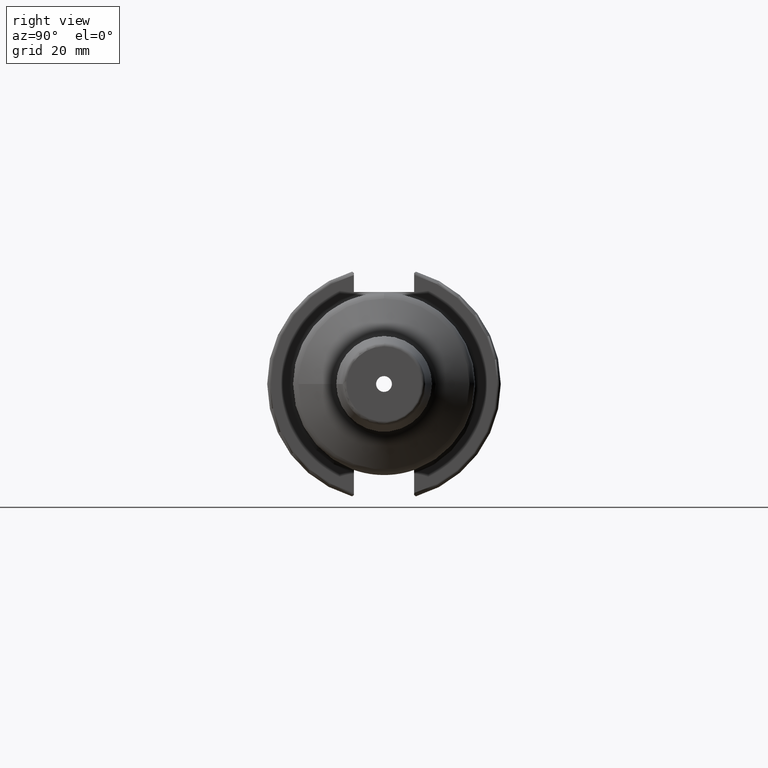
[diagram: clean part render]
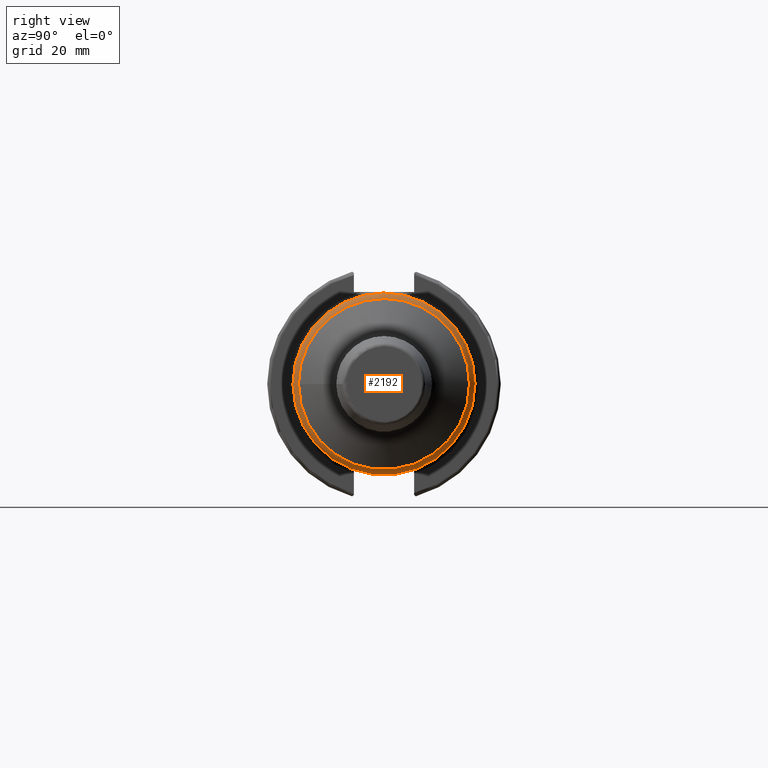
[diagram: same view with one face highlighted and labeled with its STEP entity id]
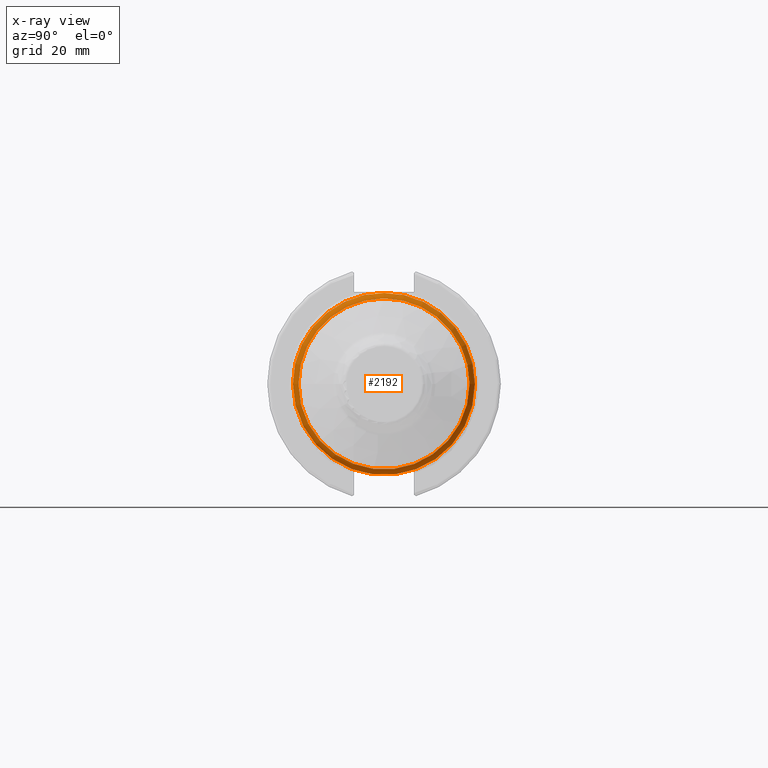
[diagram: x-ray of the same camera — body ghosted, the highlighted face saturated]
A machine part, right view. The second image highlights one B-rep face of the part: STEP entity #2192.
The next image is the same camera in x-ray: the body ghosted, the highlighted face saturated — about 0% of this face is hidden behind the body in this view.
In plain terms, the highlighted toroidal blend (fillet) surface has major radius 21.75 mm and minor (blend) radius 3 mm.
Its self-contained STEP definition (entity closure, byte-faithful):
#77=TOROIDAL_SURFACE('',#2437,21.75,3.);
#215=FACE_OUTER_BOUND('',#330,.T.);
#330=EDGE_LOOP('',(#1671,#1672,#1673,#1674,#1675,#1676,#1677,#1678));
#704=CIRCLE('',#2425,24.75);
#705=CIRCLE('',#2426,24.75);
#706=CIRCLE('',#2427,24.75);
#711=CIRCLE('',#2434,23.25);
#712=CIRCLE('',#2435,23.25);
#713=CIRCLE('',#2436,23.25);
#714=CIRCLE('',#2438,3.);
#902=VERTEX_POINT('',#3731);
#903=VERTEX_POINT('',#3732);
#904=VERTEX_POINT('',#3734);
#908=VERTEX_POINT('',#3765);
#909=VERTEX_POINT('',#3767);
#910=VERTEX_POINT('',#3769);
#1186=EDGE_CURVE('',#902,#903,#704,.T.);
#1187=EDGE_CURVE('',#904,#902,#705,.T.);
#1190=EDGE_CURVE('',#903,#904,#706,.T.);
#1196=EDGE_CURVE('',#909,#908,#711,.T.);
#1197=EDGE_CURVE('',#910,#909,#712,.T.);
#1198=EDGE_CURVE('',#908,#910,#713,.T.);
#1199=EDGE_CURVE('',#910,#903,#714,.T.);
#1671=ORIENTED_EDGE('',*,*,#1196,.T.);
#1672=ORIENTED_EDGE('',*,*,#1198,.T.);
#1673=ORIENTED_EDGE('',*,*,#1199,.T.);
#1674=ORIENTED_EDGE('',*,*,#1190,.T.);
#1675=ORIENTED_EDGE('',*,*,#1187,.T.);
#1676=ORIENTED_EDGE('',*,*,#1186,.T.);
#1677=ORIENTED_EDGE('',*,*,#1199,.F.);
#1678=ORIENTED_EDGE('',*,*,#1197,.T.);
#2192=ADVANCED_FACE('',(#215),#77,.T.);
#2425=AXIS2_PLACEMENT_3D('',#3733,#2900,#2901);
#2426=AXIS2_PLACEMENT_3D('',#3735,#2902,#2903);
#2427=AXIS2_PLACEMENT_3D('',#3755,#2905,#2906);
#2434=AXIS2_PLACEMENT_3D('',#3768,#2920,#2921);
#2435=AXIS2_PLACEMENT_3D('',#3770,#2922,#2923);
#2436=AXIS2_PLACEMENT_3D('',#3771,#2924,#2925);
#2437=AXIS2_PLACEMENT_3D('',#3772,#2926,#2927);
#2438=AXIS2_PLACEMENT_3D('',#3773,#2928,#2929);
#2900=DIRECTION('center_axis',(1.,0.,0.));
#2901=DIRECTION('ref_axis',(0.,-1.,1.83697019872103E-16));
#2902=DIRECTION('center_axis',(1.,0.,0.));
#2903=DIRECTION('ref_axis',(0.,-1.,1.83697019872103E-16));
#2905=DIRECTION('center_axis',(1.,0.,0.));
#2906=DIRECTION('ref_axis',(0.,-1.,1.83697019872103E-16));
#2920=DIRECTION('center_axis',(-1.,0.,0.));
#2921=DIRECTION('ref_axis',(0.,-1.,3.06161699786838E-17));
#2922=DIRECTION('center_axis',(-1.,0.,0.));
#2923=DIRECTION('ref_axis',(0.,-1.,3.06161699786838E-17));
#2924=DIRECTION('center_axis',(-1.,0.,0.));
#2925=DIRECTION('ref_axis',(0.,-1.,3.06161699786838E-17));
#2926=DIRECTION('center_axis',(1.,0.,0.));
#2927=DIRECTION('ref_axis',(0.,0.,-1.));
#2928=DIRECTION('center_axis',(0.,-1.,-1.22464679914735E-16));
#2929=DIRECTION('ref_axis',(0.,-1.22464679914735E-16,1.));
#3731=CARTESIAN_POINT('',(71.984083529453,24.75,-1.51550041394485E-15));
#3732=CARTESIAN_POINT('',(71.984083529453,-3.0310008278897E-15,24.75));
#3733=CARTESIAN_POINT('Origin',(71.984083529453,0.,0.));
#3734=CARTESIAN_POINT('',(71.984083529453,-24.75,-3.0310008278897E-15));
#3735=CARTESIAN_POINT('Origin',(71.984083529453,0.,0.));
#3755=CARTESIAN_POINT('Origin',(71.984083529453,0.,0.));
#3765=CARTESIAN_POINT('',(74.5821597408063,-23.25,-2.8473038080176E-15));
#3767=CARTESIAN_POINT('',(74.5821597408063,23.25,-7.11825952004399E-15));
#3768=CARTESIAN_POINT('Origin',(74.5821597408063,0.,-3.559129760022E-15));
#3769=CARTESIAN_POINT('',(74.5821597408063,-2.8473038080176E-15,23.25));
#3770=CARTESIAN_POINT('Origin',(74.5821597408063,0.,-3.559129760022E-15));
#3771=CARTESIAN_POINT('Origin',(74.5821597408063,0.,-3.559129760022E-15));
#3772=CARTESIAN_POINT('Origin',(71.984083529453,0.,0.));
#3773=CARTESIAN_POINT('Origin',(71.984083529453,-2.66360678814549E-15,21.75));